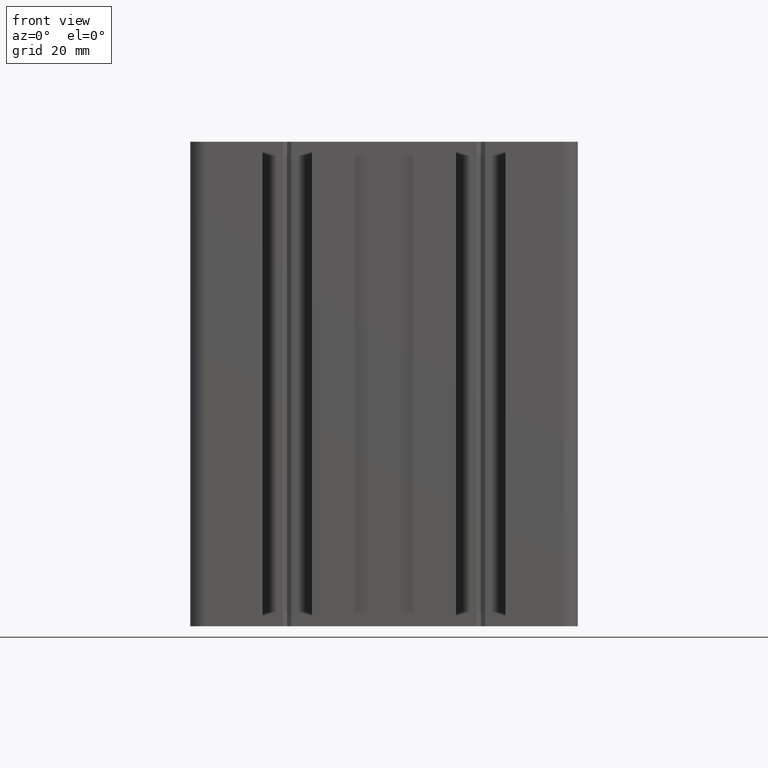
[diagram: clean part render]
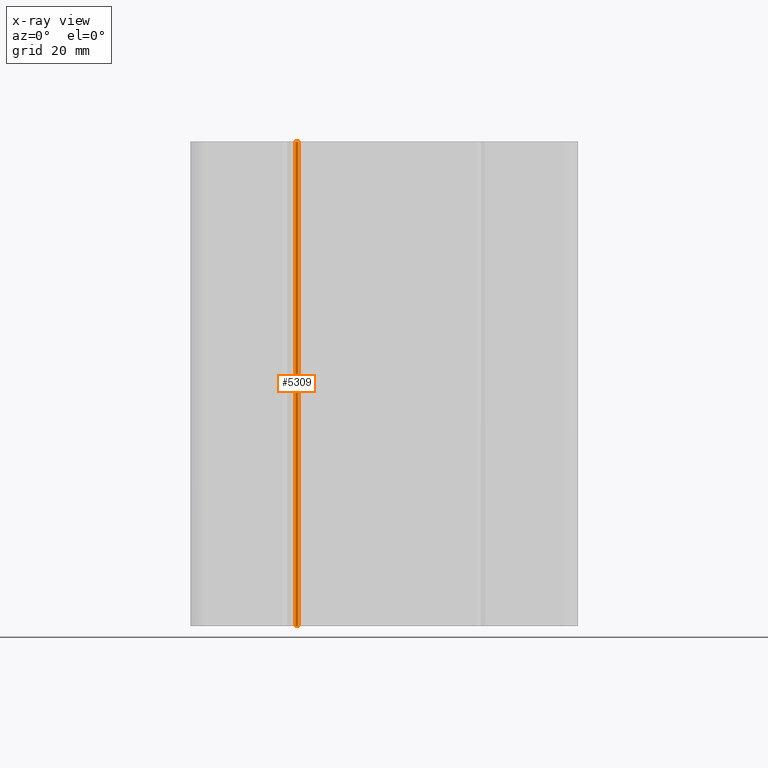
[diagram: x-ray — body ghosted, one internal face saturated and labeled with its STEP entity id]
A machine part, front view, then the same camera in x-ray: the body is ghosted and one INTERNAL B-rep face — a face not visible from any outside direction — is saturated and labeled: STEP entity #5309.
In plain terms, the highlighted cylindrical surface (edge-blend (fillet) strip) has radius 0.5 mm, axis along (-0, -0, -1).
Its self-contained STEP definition (entity closure, byte-faithful):
#1331 = CARTESIAN_POINT ( 'NONE',  ( -17.68522451451676100, -15.03594766287326000, 100.0000000000000000 ) ) ;
#1359 = AXIS2_PLACEMENT_3D ( 'NONE', #1400, #1399, #1398 ) ;
#1368 = CARTESIAN_POINT ( 'NONE',  ( -18.30761672226802300, -15.29512596201522500, 100.0000000000000000 ) ) ;
#1398 = DIRECTION ( 'NONE',  ( 1.000000000000000000, 0.0000000000000000000, 0.0000000000000000000 ) ) ;
#1399 = DIRECTION ( 'NONE',  ( -0.0000000000000000000, -0.0000000000000000000, -1.000000000000000000 ) ) ;
#1400 = CARTESIAN_POINT ( 'NONE',  ( -18.13837842025879600, -14.82463855821674600, 100.0000000000000000 ) ) ;
#1401 = CIRCLE ( 'NONE', #1359, 0.5000000000000004400 ) ;
#2358 = VERTEX_POINT ( 'NONE', #7975 ) ;
#2366 = VERTEX_POINT ( 'NONE', #7999 ) ;
#2374 = EDGE_CURVE ( 'NONE', #2358, #2366, #7987, .T. ) ;
#5245 = ORIENTED_EDGE ( 'NONE', *, *, #2374, .F. ) ;
#5287 = ORIENTED_EDGE ( 'NONE', *, *, #5305, .F. ) ;
#5288 = EDGE_CURVE ( 'NONE', #7073, #2366, #12488, .T. ) ;
#5289 = ORIENTED_EDGE ( 'NONE', *, *, #7080, .T. ) ;
#5291 = ORIENTED_EDGE ( 'NONE', *, *, #5288, .T. ) ;
#5302 = EDGE_LOOP ( 'NONE', ( #5245, #5287, #5289, #5291 ) ) ;
#5305 = EDGE_CURVE ( 'NONE', #7059, #2358, #12517, .T. ) ;
#5309 = ADVANCED_FACE ( 'NONE', ( #12473 ), #12478, .T. ) ;
#7059 = VERTEX_POINT ( 'NONE', #1331 ) ;
#7073 = VERTEX_POINT ( 'NONE', #1368 ) ;
#7080 = EDGE_CURVE ( 'NONE', #7059, #7073, #1401, .T. ) ;
#7975 = CARTESIAN_POINT ( 'NONE',  ( -17.68522451451676100, -15.03594766287326000, 0.0000000000000000000 ) ) ;
#7987 = CIRCLE ( 'NONE', #7992, 0.5000000000000004400 ) ;
#7992 = AXIS2_PLACEMENT_3D ( 'NONE', #8043, #8042, #8041 ) ;
#7999 = CARTESIAN_POINT ( 'NONE',  ( -18.30761672226802300, -15.29512596201522500, 0.0000000000000000000 ) ) ;
#8041 = DIRECTION ( 'NONE',  ( 1.000000000000000000, 0.0000000000000000000, 0.0000000000000000000 ) ) ;
#8042 = DIRECTION ( 'NONE',  ( -0.0000000000000000000, -0.0000000000000000000, -1.000000000000000000 ) ) ;
#8043 = CARTESIAN_POINT ( 'NONE',  ( -18.13837842025879600, -14.82463855821674600, 0.0000000000000000000 ) ) ;
#12473 = FACE_OUTER_BOUND ( 'NONE', #5302, .T. ) ;
#12478 = CYLINDRICAL_SURFACE ( 'NONE', #12513, 0.5000000000000004400 ) ;
#12481 = DIRECTION ( 'NONE',  ( -0.0000000000000000000, -0.0000000000000000000, -1.000000000000000000 ) ) ;
#12482 = VECTOR ( 'NONE', #12481, 1000.000000000000000 ) ;
#12487 = CARTESIAN_POINT ( 'NONE',  ( -18.30761672226802300, -15.29512596201522500, 100.0000000000000000 ) ) ;
#12488 = LINE ( 'NONE', #12487, #12482 ) ;
#12509 = DIRECTION ( 'NONE',  ( -1.000000000000000000, 0.0000000000000000000, 0.0000000000000000000 ) ) ;
#12510 = DIRECTION ( 'NONE',  ( -0.0000000000000000000, -0.0000000000000000000, -1.000000000000000000 ) ) ;
#12513 = AXIS2_PLACEMENT_3D ( 'NONE', #12530, #12510, #12509 ) ;
#12514 = DIRECTION ( 'NONE',  ( -0.0000000000000000000, -0.0000000000000000000, -1.000000000000000000 ) ) ;
#12515 = VECTOR ( 'NONE', #12514, 1000.000000000000000 ) ;
#12516 = CARTESIAN_POINT ( 'NONE',  ( -17.68522451451676100, -15.03594766287326000, 100.0000000000000000 ) ) ;
#12517 = LINE ( 'NONE', #12516, #12515 ) ;
#12530 = CARTESIAN_POINT ( 'NONE',  ( -18.13837842025879600, -14.82463855821674600, 100.0000000000000000 ) ) ;